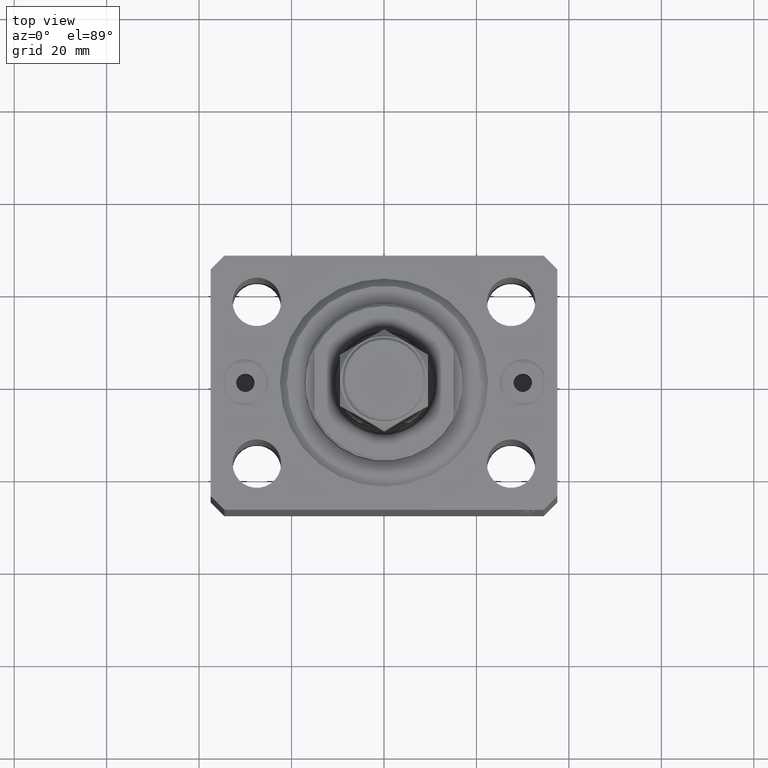
[diagram: clean part render]
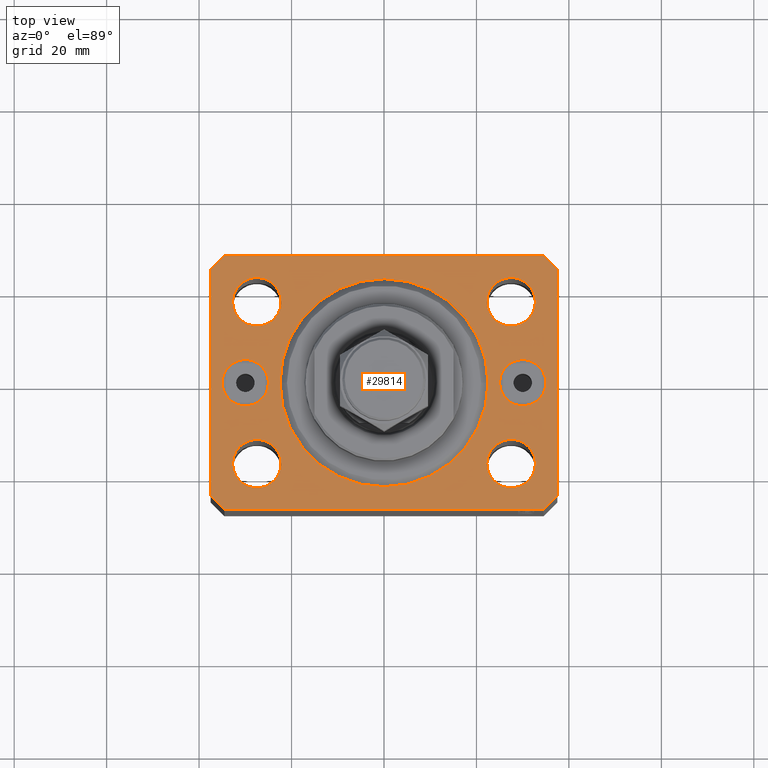
[diagram: same view with one face highlighted and labeled with its STEP entity id]
A machine part, top view. The second image highlights one B-rep face of the part: STEP entity #29814.
In plain terms, the highlighted planar face has unit normal (0, 0, 1).
Its self-contained STEP definition (entity closure, byte-faithful):
#22 = DIRECTION ( 'NONE',  ( 0.000000000000000000, -0.000000000000000000, -1.000000000000000000 ) ) ;
#550 = DIRECTION ( 'NONE',  ( 1.000000000000000000, 0.000000000000000000, 0.000000000000000000 ) ) ;
#809 = CIRCLE ( 'NONE', #26875, 5.250000000000000888 ) ;
#972 = EDGE_CURVE ( 'NONE', #3988, #42832, #5680, .T. ) ;
#1202 = LINE ( 'NONE', #5156, #1336 ) ;
#1336 = VECTOR ( 'NONE', #19126, 1000.000000000000000 ) ;
#1349 = CIRCLE ( 'NONE', #27414, 5.000000000000000888 ) ;
#1506 = CARTESIAN_POINT ( 'NONE',  ( 30.00000000000000000, 0.000000000000000000, 0.000000000000000000 ) ) ;
#1633 = EDGE_CURVE ( 'NONE', #38310, #13877, #44242, .T. ) ;
#1737 = DIRECTION ( 'NONE',  ( 1.000000000000000000, 0.000000000000000000, 0.000000000000000000 ) ) ;
#2013 = CARTESIAN_POINT ( 'NONE',  ( 27.50000000000000000, 17.49999999999999289, 0.000000000000000000 ) ) ;
#2116 = CARTESIAN_POINT ( 'NONE',  ( -27.50000000000000000, 17.49999999999999645, 0.000000000000000000 ) ) ;
#2182 = CARTESIAN_POINT ( 'NONE',  ( 22.50000000000000355, 0.000000000000000000, 0.000000000000000000 ) ) ;
#2241 = DIRECTION ( 'NONE',  ( 1.000000000000000000, 0.000000000000000000, 0.000000000000000000 ) ) ;
#2325 = CIRCLE ( 'NONE', #23927, 5.250000000000000888 ) ;
#2426 = VERTEX_POINT ( 'NONE', #32099 ) ;
#2975 = CIRCLE ( 'NONE', #30560, 22.50000000000000355 ) ;
#3008 = AXIS2_PLACEMENT_3D ( 'NONE', #14066, #17788, #7300 ) ;
#3167 = DIRECTION ( 'NONE',  ( 1.000000000000000000, 0.000000000000000000, 0.000000000000000000 ) ) ;
#3798 = CARTESIAN_POINT ( 'NONE',  ( -34.49999999999999289, 27.50000000000000000, 0.000000000000000000 ) ) ;
#3988 = VERTEX_POINT ( 'NONE', #13991 ) ;
#3996 = CARTESIAN_POINT ( 'NONE',  ( -22.24999999999999289, -17.50000000000000000, 0.000000000000000000 ) ) ;
#4142 = ORIENTED_EDGE ( 'NONE', *, *, #10723, .F. ) ;
#4181 = AXIS2_PLACEMENT_3D ( 'NONE', #6416, #9702, #6198 ) ;
#4226 = CARTESIAN_POINT ( 'NONE',  ( 37.49999999999999289, -24.50000000000000000, 0.000000000000000000 ) ) ;
#4751 = EDGE_CURVE ( 'NONE', #2426, #22088, #22017, .T. ) ;
#5005 = ORIENTED_EDGE ( 'NONE', *, *, #8636, .F. ) ;
#5059 = CARTESIAN_POINT ( 'NONE',  ( -37.49999999999999289, -24.50000000000000000, 0.000000000000000000 ) ) ;
#5156 = CARTESIAN_POINT ( 'NONE',  ( 34.50000000000056843, 27.50000000000000000, 0.000000000000000000 ) ) ;
#5377 = CARTESIAN_POINT ( 'NONE',  ( 37.49999999999999289, -24.50000000000000000, 0.000000000000000000 ) ) ;
#5498 = DIRECTION ( 'NONE',  ( 0.000000000000000000, -1.000000000000000000, 0.000000000000000000 ) ) ;
#5680 = CIRCLE ( 'NONE', #4181, 5.250000000000000888 ) ;
#5723 = LINE ( 'NONE', #33497, #15015 ) ;
#5755 = VERTEX_POINT ( 'NONE', #11278 ) ;
#6198 = DIRECTION ( 'NONE',  ( 1.000000000000000000, 0.000000000000000000, 0.000000000000000000 ) ) ;
#6230 = CARTESIAN_POINT ( 'NONE',  ( -30.00000000000000000, 0.000000000000000000, 0.000000000000000000 ) ) ;
#6267 = VERTEX_POINT ( 'NONE', #34941 ) ;
#6393 = FACE_OUTER_BOUND ( 'NONE', #13308, .T. ) ;
#6416 = CARTESIAN_POINT ( 'NONE',  ( -27.50000000000000000, 17.49999999999999645, 0.000000000000000000 ) ) ;
#6624 = FACE_BOUND ( 'NONE', #39480, .T. ) ;
#6931 = DIRECTION ( 'NONE',  ( 0.000000000000000000, 0.000000000000000000, 1.000000000000000000 ) ) ;
#7067 = CARTESIAN_POINT ( 'NONE',  ( 27.49999999999999289, -17.50000000000000000, 0.000000000000000000 ) ) ;
#7159 = VECTOR ( 'NONE', #23274, 1000.000000000000000 ) ;
#7300 = DIRECTION ( 'NONE',  ( 1.000000000000000000, 0.000000000000000000, 0.000000000000000000 ) ) ;
#8073 = DIRECTION ( 'NONE',  ( 0.000000000000000000, 0.000000000000000000, 1.000000000000000000 ) ) ;
#8086 = EDGE_LOOP ( 'NONE', ( #20634, #35883 ) ) ;
#8636 = EDGE_CURVE ( 'NONE', #22797, #21770, #16150, .T. ) ;
#9339 = ORIENTED_EDGE ( 'NONE', *, *, #21487, .T. ) ;
#9394 = CIRCLE ( 'NONE', #22786, 22.50000000000000355 ) ;
#9676 = FACE_BOUND ( 'NONE', #38950, .T. ) ;
#9684 = CARTESIAN_POINT ( 'NONE',  ( -22.50000000000000355, 2.755455298081545172E-15, 0.000000000000000000 ) ) ;
#9702 = DIRECTION ( 'NONE',  ( 0.000000000000000000, 0.000000000000000000, 1.000000000000000000 ) ) ;
#10047 = DIRECTION ( 'NONE',  ( -0.7071067811865364705, 0.7071067811865584529, 0.000000000000000000 ) ) ;
#10352 = FACE_BOUND ( 'NONE', #28246, .T. ) ;
#10723 = EDGE_CURVE ( 'NONE', #21770, #22797, #1349, .T. ) ;
#10975 = VERTEX_POINT ( 'NONE', #31612 ) ;
#11278 = CARTESIAN_POINT ( 'NONE',  ( 32.75000000000000000, 17.49999999999999289, 0.000000000000000000 ) ) ;
#11375 = CARTESIAN_POINT ( 'NONE',  ( 34.49999999999999289, -27.49999999999999645, 0.000000000000000000 ) ) ;
#12063 = CARTESIAN_POINT ( 'NONE',  ( -34.99999999999999289, 6.123233995736768255E-16, 0.000000000000000000 ) ) ;
#12221 = VERTEX_POINT ( 'NONE', #2182 ) ;
#12587 = CIRCLE ( 'NONE', #14822, 5.250000000000000888 ) ;
#12950 = DIRECTION ( 'NONE',  ( 1.000000000000000000, 0.000000000000000000, -0.000000000000000000 ) ) ;
#12996 = CARTESIAN_POINT ( 'NONE',  ( -24.99999999999999645, 0.000000000000000000, 0.000000000000000000 ) ) ;
#13166 = CARTESIAN_POINT ( 'NONE',  ( 27.49999999999999289, -17.50000000000000000, 0.000000000000000000 ) ) ;
#13308 = EDGE_LOOP ( 'NONE', ( #23041, #9339, #28478, #37749, #16898, #41205, #25377, #40975 ) ) ;
#13421 = AXIS2_PLACEMENT_3D ( 'NONE', #7067, #21293, #550 ) ;
#13853 = FACE_BOUND ( 'NONE', #26758, .T. ) ;
#13877 = VERTEX_POINT ( 'NONE', #11375 ) ;
#13991 = CARTESIAN_POINT ( 'NONE',  ( -22.25000000000000000, 17.49999999999999645, 0.000000000000000000 ) ) ;
#14066 = CARTESIAN_POINT ( 'NONE',  ( -27.49999999999999289, -17.50000000000000000, 0.000000000000000000 ) ) ;
#14124 = CARTESIAN_POINT ( 'NONE',  ( -34.49999999999998579, -27.49999999999999645, 0.000000000000000000 ) ) ;
#14342 = ORIENTED_EDGE ( 'NONE', *, *, #31328, .F. ) ;
#14822 = AXIS2_PLACEMENT_3D ( 'NONE', #2116, #16332, #36861 ) ;
#15015 = VECTOR ( 'NONE', #5498, 1000.000000000000000 ) ;
#15203 = EDGE_CURVE ( 'NONE', #42832, #3988, #12587, .T. ) ;
#15565 = AXIS2_PLACEMENT_3D ( 'NONE', #40029, #8073, #33039 ) ;
#15723 = DIRECTION ( 'NONE',  ( 0.000000000000000000, -0.000000000000000000, -1.000000000000000000 ) ) ;
#15875 = LINE ( 'NONE', #4226, #25893 ) ;
#16150 = CIRCLE ( 'NONE', #43710, 5.000000000000000888 ) ;
#16228 = DIRECTION ( 'NONE',  ( 1.000000000000000000, 0.000000000000000000, 0.000000000000000000 ) ) ;
#16332 = DIRECTION ( 'NONE',  ( 0.000000000000000000, 0.000000000000000000, 1.000000000000000000 ) ) ;
#16456 = CARTESIAN_POINT ( 'NONE',  ( 0.000000000000000000, 0.000000000000000000, 0.000000000000000000 ) ) ;
#16898 = ORIENTED_EDGE ( 'NONE', *, *, #1633, .T. ) ;
#16947 = CIRCLE ( 'NONE', #43021, 5.250000000000000888 ) ;
#17690 = ORIENTED_EDGE ( 'NONE', *, *, #22968, .F. ) ;
#17722 = CARTESIAN_POINT ( 'NONE',  ( 30.00000000000000000, 0.000000000000000000, 0.000000000000000000 ) ) ;
#17730 = LINE ( 'NONE', #31982, #21520 ) ;
#17788 = DIRECTION ( 'NONE',  ( 0.000000000000000000, 0.000000000000000000, 1.000000000000000000 ) ) ;
#18279 = EDGE_CURVE ( 'NONE', #12221, #25951, #9394, .T. ) ;
#18402 = VERTEX_POINT ( 'NONE', #29329 ) ;
#19126 = DIRECTION ( 'NONE',  ( -1.000000000000000000, 0.000000000000000000, 0.000000000000000000 ) ) ;
#19150 = EDGE_CURVE ( 'NONE', #10975, #31769, #1202, .T. ) ;
#19201 = ORIENTED_EDGE ( 'NONE', *, *, #4751, .T. ) ;
#19299 = EDGE_CURVE ( 'NONE', #44771, #5755, #16947, .T. ) ;
#20124 = DIRECTION ( 'NONE',  ( 0.7071067811865474617, 0.7071067811865474617, 0.000000000000000000 ) ) ;
#20146 = CIRCLE ( 'NONE', #3008, 5.250000000000000888 ) ;
#20373 = DIRECTION ( 'NONE',  ( 1.000000000000000000, 0.000000000000000000, 0.000000000000000000 ) ) ;
#20393 = DIRECTION ( 'NONE',  ( 0.000000000000000000, 0.000000000000000000, 1.000000000000000000 ) ) ;
#20446 = DIRECTION ( 'NONE',  ( 1.000000000000000000, 0.000000000000000000, 0.000000000000000000 ) ) ;
#20497 = ORIENTED_EDGE ( 'NONE', *, *, #44260, .F. ) ;
#20634 = ORIENTED_EDGE ( 'NONE', *, *, #972, .F. ) ;
#20797 = LINE ( 'NONE', #42248, #23077 ) ;
#20881 = CARTESIAN_POINT ( 'NONE',  ( 0.000000000000000000, 0.000000000000000000, 0.000000000000000000 ) ) ;
#21293 = DIRECTION ( 'NONE',  ( 0.000000000000000000, 0.000000000000000000, 1.000000000000000000 ) ) ;
#21361 = DIRECTION ( 'NONE',  ( 1.000000000000000000, 0.000000000000000000, 0.000000000000000000 ) ) ;
#21446 = VECTOR ( 'NONE', #39478, 1000.000000000000000 ) ;
#21467 = DIRECTION ( 'NONE',  ( 1.000000000000000000, 0.000000000000000000, 0.000000000000000000 ) ) ;
#21487 = EDGE_CURVE ( 'NONE', #31769, #30548, #28529, .T. ) ;
#21520 = VECTOR ( 'NONE', #10047, 1000.000000000000114 ) ;
#21606 = CARTESIAN_POINT ( 'NONE',  ( 0.000000000000000000, 0.000000000000000000, 0.000000000000000000 ) ) ;
#21770 = VERTEX_POINT ( 'NONE', #12063 ) ;
#22017 = CIRCLE ( 'NONE', #24964, 4.999999999999997335 ) ;
#22088 = VERTEX_POINT ( 'NONE', #23232 ) ;
#22431 = AXIS2_PLACEMENT_3D ( 'NONE', #1506, #15723, #1737 ) ;
#22661 = VERTEX_POINT ( 'NONE', #36113 ) ;
#22786 = AXIS2_PLACEMENT_3D ( 'NONE', #21606, #24862, #21361 ) ;
#22789 = DIRECTION ( 'NONE',  ( 0.7071067811865483499, -0.7071067811865466846, 0.000000000000000000 ) ) ;
#22797 = VERTEX_POINT ( 'NONE', #12996 ) ;
#22916 = EDGE_LOOP ( 'NONE', ( #20497, #14342 ) ) ;
#22968 = EDGE_CURVE ( 'NONE', #26886, #45264, #31979, .T. ) ;
#23027 = ORIENTED_EDGE ( 'NONE', *, *, #27992, .F. ) ;
#23041 = ORIENTED_EDGE ( 'NONE', *, *, #19150, .T. ) ;
#23077 = VECTOR ( 'NONE', #20124, 1000.000000000000114 ) ;
#23218 = CARTESIAN_POINT ( 'NONE',  ( -32.75000000000000000, 17.49999999999999645, 0.000000000000000000 ) ) ;
#23232 = CARTESIAN_POINT ( 'NONE',  ( 25.00000000000000000, 6.123233995736762338E-16, 0.000000000000000000 ) ) ;
#23274 = DIRECTION ( 'NONE',  ( 1.000000000000000000, 0.000000000000000000, 0.000000000000000000 ) ) ;
#23892 = CARTESIAN_POINT ( 'NONE',  ( 27.50000000000000000, 17.49999999999999289, 0.000000000000000000 ) ) ;
#23927 = AXIS2_PLACEMENT_3D ( 'NONE', #23892, #30211, #20373 ) ;
#24413 = EDGE_CURVE ( 'NONE', #13877, #43449, #20797, .T. ) ;
#24862 = DIRECTION ( 'NONE',  ( 0.000000000000000000, 0.000000000000000000, 1.000000000000000000 ) ) ;
#24964 = AXIS2_PLACEMENT_3D ( 'NONE', #17722, #22, #21467 ) ;
#25377 = ORIENTED_EDGE ( 'NONE', *, *, #34936, .T. ) ;
#25546 = ORIENTED_EDGE ( 'NONE', *, *, #32504, .T. ) ;
#25893 = VECTOR ( 'NONE', #34896, 1000.000000000000000 ) ;
#25951 = VERTEX_POINT ( 'NONE', #9684 ) ;
#26299 = LINE ( 'NONE', #5059, #41647 ) ;
#26317 = ORIENTED_EDGE ( 'NONE', *, *, #18279, .F. ) ;
#26453 = EDGE_LOOP ( 'NONE', ( #23027, #45768 ) ) ;
#26535 = CARTESIAN_POINT ( 'NONE',  ( 22.24999999999999289, -17.50000000000000000, 0.000000000000000000 ) ) ;
#26758 = EDGE_LOOP ( 'NONE', ( #19201, #25546 ) ) ;
#26875 = AXIS2_PLACEMENT_3D ( 'NONE', #13166, #34178, #2241 ) ;
#26886 = VERTEX_POINT ( 'NONE', #41247 ) ;
#27414 = AXIS2_PLACEMENT_3D ( 'NONE', #28633, #6931, #35370 ) ;
#27598 = CARTESIAN_POINT ( 'NONE',  ( -34.49999999999999289, 27.50000000000000000, 0.000000000000000000 ) ) ;
#27710 = DIRECTION ( 'NONE',  ( 0.000000000000000000, 0.000000000000000000, 1.000000000000000000 ) ) ;
#27992 = EDGE_CURVE ( 'NONE', #5755, #44771, #2325, .T. ) ;
#28246 = EDGE_LOOP ( 'NONE', ( #5005, #4142 ) ) ;
#28478 = ORIENTED_EDGE ( 'NONE', *, *, #29740, .T. ) ;
#28529 = LINE ( 'NONE', #3798, #21446 ) ;
#28633 = CARTESIAN_POINT ( 'NONE',  ( -30.00000000000000000, 0.000000000000000000, 0.000000000000000000 ) ) ;
#29088 = CARTESIAN_POINT ( 'NONE',  ( -37.49999999999999289, 24.50000000000000000, 0.000000000000000000 ) ) ;
#29178 = AXIS2_PLACEMENT_3D ( 'NONE', #16456, #45123, #12950 ) ;
#29329 = CARTESIAN_POINT ( 'NONE',  ( -37.49999999999999289, -24.50000000000000000, 0.000000000000000000 ) ) ;
#29740 = EDGE_CURVE ( 'NONE', #30548, #18402, #5723, .T. ) ;
#29814 = ADVANCED_FACE ( 'NONE', ( #6393, #37891, #42070, #38568, #9676, #6624, #10352, #13853 ), #42300, .T. ) ;
#29864 = CIRCLE ( 'NONE', #13421, 5.250000000000000888 ) ;
#30211 = DIRECTION ( 'NONE',  ( 0.000000000000000000, 0.000000000000000000, 1.000000000000000000 ) ) ;
#30548 = VERTEX_POINT ( 'NONE', #29088 ) ;
#30560 = AXIS2_PLACEMENT_3D ( 'NONE', #20881, #35109, #3167 ) ;
#31328 = EDGE_CURVE ( 'NONE', #38100, #22661, #809, .T. ) ;
#31612 = CARTESIAN_POINT ( 'NONE',  ( 34.50000000000056843, 27.50000000000000000, 0.000000000000000000 ) ) ;
#31769 = VERTEX_POINT ( 'NONE', #27598 ) ;
#31979 = CIRCLE ( 'NONE', #15565, 5.250000000000000888 ) ;
#31982 = CARTESIAN_POINT ( 'NONE',  ( 37.50000000000051870, 24.49999999999995381, 0.000000000000000000 ) ) ;
#32099 = CARTESIAN_POINT ( 'NONE',  ( 34.99999999999999289, 0.000000000000000000, 0.000000000000000000 ) ) ;
#32504 = EDGE_CURVE ( 'NONE', #22088, #2426, #39536, .T. ) ;
#33039 = DIRECTION ( 'NONE',  ( 1.000000000000000000, 0.000000000000000000, 0.000000000000000000 ) ) ;
#33497 = CARTESIAN_POINT ( 'NONE',  ( -37.49999999999999289, 24.50000000000000000, 0.000000000000000000 ) ) ;
#33980 = CARTESIAN_POINT ( 'NONE',  ( -34.49999999999998579, -27.49999999999999645, 0.000000000000000000 ) ) ;
#34178 = DIRECTION ( 'NONE',  ( 0.000000000000000000, 0.000000000000000000, 1.000000000000000000 ) ) ;
#34896 = DIRECTION ( 'NONE',  ( 1.076236605503979380E-14, 1.000000000000000000, 0.000000000000000000 ) ) ;
#34936 = EDGE_CURVE ( 'NONE', #43449, #6267, #15875, .T. ) ;
#34941 = CARTESIAN_POINT ( 'NONE',  ( 37.50000000000051870, 24.49999999999995381, 0.000000000000000000 ) ) ;
#35109 = DIRECTION ( 'NONE',  ( 0.000000000000000000, 0.000000000000000000, 1.000000000000000000 ) ) ;
#35370 = DIRECTION ( 'NONE',  ( 1.000000000000000000, 0.000000000000000000, 0.000000000000000000 ) ) ;
#35883 = ORIENTED_EDGE ( 'NONE', *, *, #15203, .F. ) ;
#36113 = CARTESIAN_POINT ( 'NONE',  ( 32.74999999999999289, -17.50000000000000000, 0.000000000000000000 ) ) ;
#36372 = EDGE_CURVE ( 'NONE', #6267, #10975, #17730, .T. ) ;
#36861 = DIRECTION ( 'NONE',  ( 1.000000000000000000, 0.000000000000000000, 0.000000000000000000 ) ) ;
#37749 = ORIENTED_EDGE ( 'NONE', *, *, #41474, .T. ) ;
#37891 = FACE_BOUND ( 'NONE', #8086, .T. ) ;
#38100 = VERTEX_POINT ( 'NONE', #26535 ) ;
#38198 = ORIENTED_EDGE ( 'NONE', *, *, #44132, .F. ) ;
#38310 = VERTEX_POINT ( 'NONE', #14124 ) ;
#38568 = FACE_BOUND ( 'NONE', #22916, .T. ) ;
#38950 = EDGE_LOOP ( 'NONE', ( #38198, #17690 ) ) ;
#39478 = DIRECTION ( 'NONE',  ( -0.7071067811865471286, -0.7071067811865479058, 0.000000000000000000 ) ) ;
#39480 = EDGE_LOOP ( 'NONE', ( #26317, #40909 ) ) ;
#39536 = CIRCLE ( 'NONE', #22431, 4.999999999999997335 ) ;
#40029 = CARTESIAN_POINT ( 'NONE',  ( -27.49999999999999289, -17.50000000000000000, 0.000000000000000000 ) ) ;
#40909 = ORIENTED_EDGE ( 'NONE', *, *, #42642, .F. ) ;
#40975 = ORIENTED_EDGE ( 'NONE', *, *, #36372, .T. ) ;
#41205 = ORIENTED_EDGE ( 'NONE', *, *, #24413, .T. ) ;
#41247 = CARTESIAN_POINT ( 'NONE',  ( -32.74999999999999289, -17.50000000000000000, 0.000000000000000000 ) ) ;
#41474 = EDGE_CURVE ( 'NONE', #18402, #38310, #26299, .T. ) ;
#41647 = VECTOR ( 'NONE', #22789, 1000.000000000000000 ) ;
#42070 = FACE_BOUND ( 'NONE', #26453, .T. ) ;
#42248 = CARTESIAN_POINT ( 'NONE',  ( 34.49999999999999289, -27.49999999999999645, 0.000000000000000000 ) ) ;
#42300 = PLANE ( 'NONE',  #29178 ) ;
#42642 = EDGE_CURVE ( 'NONE', #25951, #12221, #2975, .T. ) ;
#42832 = VERTEX_POINT ( 'NONE', #23218 ) ;
#43021 = AXIS2_PLACEMENT_3D ( 'NONE', #2013, #20393, #16228 ) ;
#43449 = VERTEX_POINT ( 'NONE', #5377 ) ;
#43710 = AXIS2_PLACEMENT_3D ( 'NONE', #6230, #27710, #20446 ) ;
#44132 = EDGE_CURVE ( 'NONE', #45264, #26886, #20146, .T. ) ;
#44242 = LINE ( 'NONE', #33980, #7159 ) ;
#44255 = CARTESIAN_POINT ( 'NONE',  ( 22.25000000000000000, 17.49999999999999289, 0.000000000000000000 ) ) ;
#44260 = EDGE_CURVE ( 'NONE', #22661, #38100, #29864, .T. ) ;
#44771 = VERTEX_POINT ( 'NONE', #44255 ) ;
#45123 = DIRECTION ( 'NONE',  ( 0.000000000000000000, 0.000000000000000000, 1.000000000000000000 ) ) ;
#45264 = VERTEX_POINT ( 'NONE', #3996 ) ;
#45768 = ORIENTED_EDGE ( 'NONE', *, *, #19299, .F. ) ;